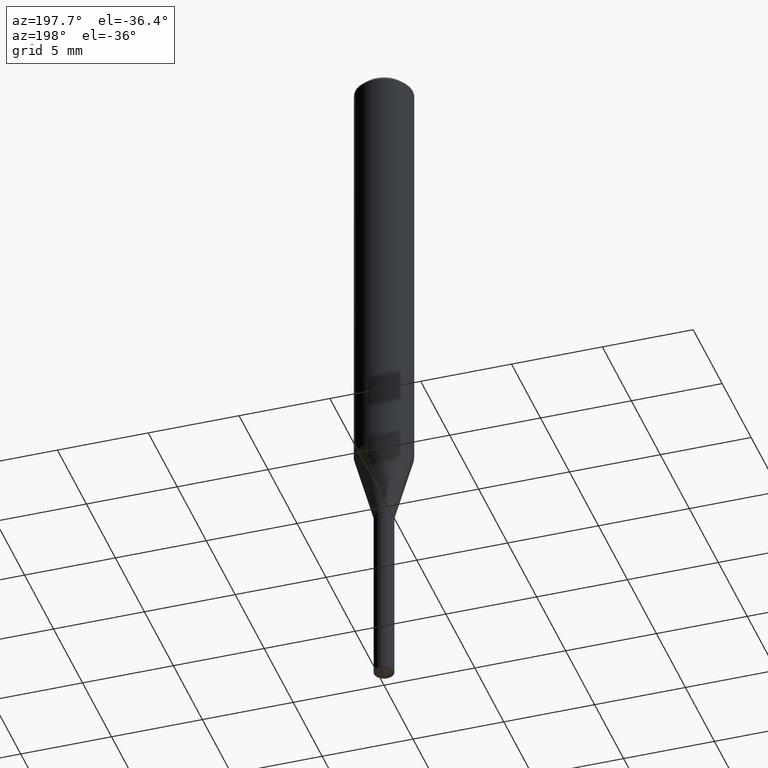
[diagram: clean part render]
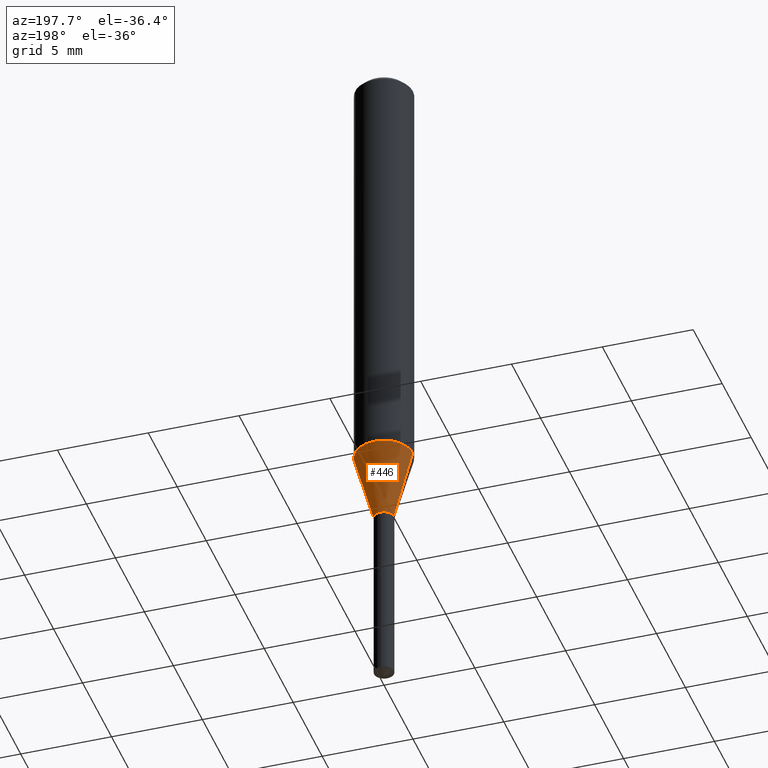
[diagram: same view with one face highlighted and labeled with its STEP entity id]
A machine part, auxiliary view. The second image highlights one B-rep face of the part: STEP entity #446.
In plain terms, the highlighted conical surface has half-angle 15 deg.
Its self-contained STEP definition (entity closure, byte-faithful):
#8 = CARTESIAN_POINT ( 'NONE',  ( 0.02150000000000000175, -3.968068541595235384E-15, -1.093500000000000139 ) ) ;
#15 = CIRCLE ( 'NONE', #373, 0.02150000000000000175 ) ;
#36 = LINE ( 'NONE', #187, #480 ) ;
#39 = ORIENTED_EDGE ( 'NONE', *, *, #263, .F. ) ;
#60 = FACE_OUTER_BOUND ( 'NONE', #473, .T. ) ;
#63 = EDGE_CURVE ( 'NONE', #485, #439, #488, .T. ) ;
#69 = DIRECTION ( 'NONE',  ( -2.445468806185136597E-29, 3.491481338843145583E-15, 1.000000000000000000 ) ) ;
#79 = DIRECTION ( 'NONE',  ( 1.000000000000000000, -6.982962677686267499E-15, 0.000000000000000000 ) ) ;
#111 = EDGE_CURVE ( 'NONE', #238, #211, #15, .T. ) ;
#115 = EDGE_CURVE ( 'NONE', #211, #439, #36, .T. ) ;
#135 = CARTESIAN_POINT ( 'NONE',  ( -0.06250000000000009714, -2.839599818415026848E-15, -0.9404859168896763100 ) ) ;
#137 = ORIENTED_EDGE ( 'NONE', *, *, #111, .T. ) ;
#141 = CARTESIAN_POINT ( 'NONE',  ( 2.299928972410130488E-29, -3.283689028265090253E-15, -0.9404859168896763100 ) ) ;
#149 = DIRECTION ( 'NONE',  ( -0.2588190451025214611, 5.211531920934551042E-15, 0.9659258262890682012 ) ) ;
#187 = CARTESIAN_POINT ( 'NONE',  ( -0.02150000000000000175, -3.665168155836558485E-15, -1.093500000000000139 ) ) ;
#194 = CARTESIAN_POINT ( 'NONE',  ( -0.02150000000000000175, -3.675642599853087506E-15, -1.093500000000000139 ) ) ;
#211 = VERTEX_POINT ( 'NONE', #194 ) ;
#238 = VERTEX_POINT ( 'NONE', #385 ) ;
#263 = EDGE_CURVE ( 'NONE', #238, #485, #431, .T. ) ;
#272 = DIRECTION ( 'NONE',  ( 0.2588190451025214611, 1.565188264969621573E-15, 0.9659258262890682012 ) ) ;
#285 = AXIS2_PLACEMENT_3D ( 'NONE', #141, #447, #79 ) ;
#289 = CARTESIAN_POINT ( 'NONE',  ( 2.674120139563447313E-29, -3.817934844024980555E-15, -1.093500000000000139 ) ) ;
#323 = CONICAL_SURFACE ( 'NONE', #379, 0.02150000000000000175, 0.2617993877991501295 ) ;
#334 = DIRECTION ( 'NONE',  ( -2.445468806185136597E-29, 3.491481338843145583E-15, 1.000000000000000000 ) ) ;
#367 = ORIENTED_EDGE ( 'NONE', *, *, #63, .F. ) ;
#371 = DIRECTION ( 'NONE',  ( 1.000000000000000000, -6.982962677686265133E-15, 0.000000000000000000 ) ) ;
#373 = AXIS2_PLACEMENT_3D ( 'NONE', #456, #334, #484 ) ;
#379 = AXIS2_PLACEMENT_3D ( 'NONE', #289, #69, #371 ) ;
#385 = CARTESIAN_POINT ( 'NONE',  ( 0.02150000000000000175, -3.968068541595235384E-15, -1.093500000000000139 ) ) ;
#431 = LINE ( 'NONE', #8, #458 ) ;
#436 = ORIENTED_EDGE ( 'NONE', *, *, #115, .T. ) ;
#437 = CARTESIAN_POINT ( 'NONE',  ( 0.06250000000000009714, -3.720124195620482711E-15, -0.9404859168896763100 ) ) ;
#439 = VERTEX_POINT ( 'NONE', #135 ) ;
#446 = ADVANCED_FACE ( 'NONE', ( #60 ), #323, .T. ) ;
#447 = DIRECTION ( 'NONE',  ( -2.445468806185136597E-29, 3.491481338843145583E-15, 1.000000000000000000 ) ) ;
#456 = CARTESIAN_POINT ( 'NONE',  ( 2.674120139563447313E-29, -3.817934844024980555E-15, -1.093500000000000139 ) ) ;
#458 = VECTOR ( 'NONE', #272, 39.37007874015747433 ) ;
#473 = EDGE_LOOP ( 'NONE', ( #137, #436, #367, #39 ) ) ;
#480 = VECTOR ( 'NONE', #149, 39.37007874015747433 ) ;
#484 = DIRECTION ( 'NONE',  ( 1.000000000000000000, -6.982962677686265133E-15, 0.000000000000000000 ) ) ;
#485 = VERTEX_POINT ( 'NONE', #437 ) ;
#488 = CIRCLE ( 'NONE', #285, 0.06250000000000009714 ) ;